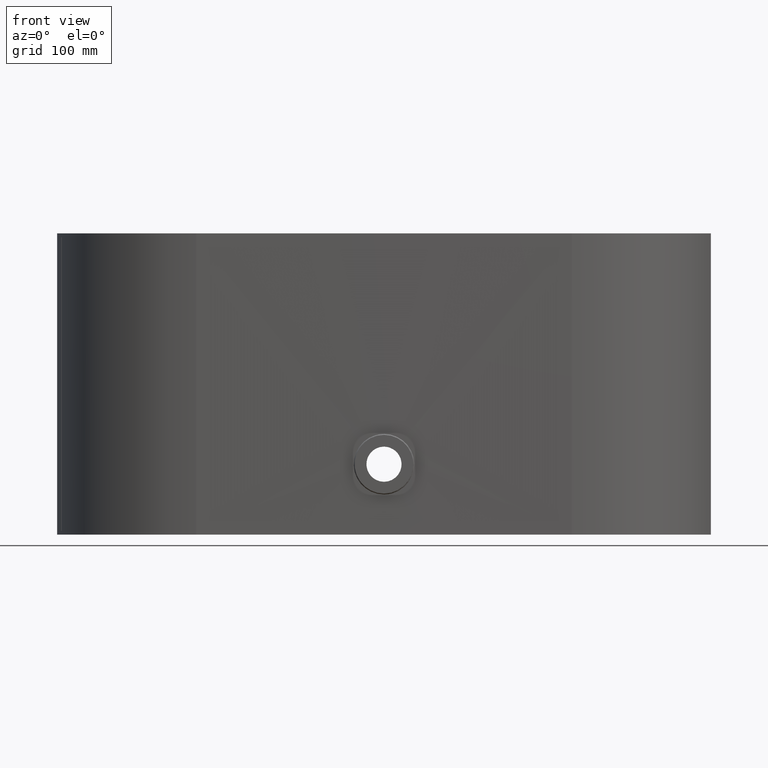
[diagram: clean part render]
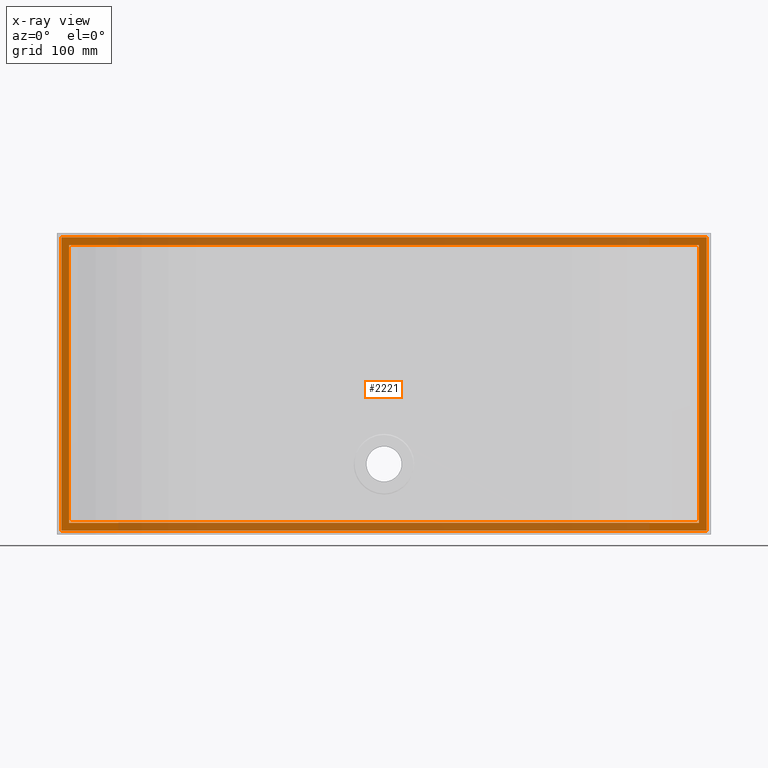
[diagram: x-ray — body ghosted, one internal face saturated and labeled with its STEP entity id]
A machine part, front view, then the same camera in x-ray: the body is ghosted and one INTERNAL B-rep face — a face not visible from any outside direction — is saturated and labeled: STEP entity #2221.
In plain terms, the highlighted planar face has unit normal (-0, 1, 0).
Its self-contained STEP definition (entity closure, byte-faithful):
#73 = VECTOR ( 'NONE', #1418, 1000.000000000000000 ) ;
#92 = CARTESIAN_POINT ( 'NONE',  ( 402.5000000000000000, -19.99999999999995000, -75.00000000000000000 ) ) ;
#106 = ORIENTED_EDGE ( 'NONE', *, *, #1814, .T. ) ;
#124 = ORIENTED_EDGE ( 'NONE', *, *, #777, .F. ) ;
#143 = CARTESIAN_POINT ( 'NONE',  ( 412.5000000000000600, -19.99999999999994700, -85.00000000000004300 ) ) ;
#155 = DIRECTION ( 'NONE',  ( -0.0000000000000000000, -0.0000000000000000000, -1.000000000000000000 ) ) ;
#175 = VERTEX_POINT ( 'NONE', #1956 ) ;
#262 = EDGE_LOOP ( 'NONE', ( #808, #124, #703, #962 ) ) ;
#313 = LINE ( 'NONE', #1352, #2713 ) ;
#338 = VECTOR ( 'NONE', #155, 1000.000000000000000 ) ;
#351 = FACE_OUTER_BOUND ( 'NONE', #262, .T. ) ;
#352 = VERTEX_POINT ( 'NONE', #2541 ) ;
#398 = CARTESIAN_POINT ( 'NONE',  ( 412.5000000000000600, -19.99999999999994700, -85.00000000000004300 ) ) ;
#401 = VERTEX_POINT ( 'NONE', #3015 ) ;
#414 = EDGE_CURVE ( 'NONE', #401, #1162, #1088, .T. ) ;
#480 = LINE ( 'NONE', #928, #3125 ) ;
#481 = AXIS2_PLACEMENT_3D ( 'NONE', #1959, #1948, #1945 ) ;
#511 = DIRECTION ( 'NONE',  ( -1.000000000000000000, -1.224646799147353200E-016, 0.0000000000000000000 ) ) ;
#542 = EDGE_CURVE ( 'NONE', #952, #814, #480, .T. ) ;
#700 = VERTEX_POINT ( 'NONE', #3092 ) ;
#703 = ORIENTED_EDGE ( 'NONE', *, *, #2772, .F. ) ;
#710 = DIRECTION ( 'NONE',  ( -1.000000000000000000, -1.224646799147353500E-016, 6.728624391667615600E-017 ) ) ;
#733 = CARTESIAN_POINT ( 'NONE',  ( -412.5000000000000600, -20.00000000000005300, -84.99999999999998600 ) ) ;
#777 = EDGE_CURVE ( 'NONE', #700, #952, #2369, .T. ) ;
#804 = LINE ( 'NONE', #3060, #2684 ) ;
#808 = ORIENTED_EDGE ( 'NONE', *, *, #542, .F. ) ;
#813 = VERTEX_POINT ( 'NONE', #3212 ) ;
#814 = VERTEX_POINT ( 'NONE', #990 ) ;
#928 = CARTESIAN_POINT ( 'NONE',  ( 412.5000000000000600, -19.99999999999994700, -85.00000000000004300 ) ) ;
#952 = VERTEX_POINT ( 'NONE', #398 ) ;
#957 = DIRECTION ( 'NONE',  ( 0.0000000000000000000, 0.0000000000000000000, 1.000000000000000000 ) ) ;
#960 = ORIENTED_EDGE ( 'NONE', *, *, #1086, .T. ) ;
#962 = ORIENTED_EDGE ( 'NONE', *, *, #1725, .F. ) ;
#990 = CARTESIAN_POINT ( 'NONE',  ( -412.5000000000000600, -20.00000000000005300, -84.99999999999998600 ) ) ;
#1086 = EDGE_CURVE ( 'NONE', #352, #401, #1480, .T. ) ;
#1088 = LINE ( 'NONE', #2751, #73 ) ;
#1162 = VERTEX_POINT ( 'NONE', #92 ) ;
#1332 = DIRECTION ( 'NONE',  ( 1.000000000000000000, 1.224646799147353500E-016, -0.0000000000000000000 ) ) ;
#1336 = CARTESIAN_POINT ( 'NONE',  ( 412.5000000000000600, -19.99999999999994700, 290.0000000000000600 ) ) ;
#1352 = CARTESIAN_POINT ( 'NONE',  ( -402.5000000000000000, -20.00000000000005000, -75.00000000000000000 ) ) ;
#1355 = DIRECTION ( 'NONE',  ( 0.0000000000000000000, 0.0000000000000000000, 1.000000000000000000 ) ) ;
#1418 = DIRECTION ( 'NONE',  ( -0.0000000000000000000, -0.0000000000000000000, -1.000000000000000000 ) ) ;
#1480 = LINE ( 'NONE', #1546, #2302 ) ;
#1546 = CARTESIAN_POINT ( 'NONE',  ( 402.5000000000000000, -19.99999999999995000, 280.0000000000000000 ) ) ;
#1572 = ORIENTED_EDGE ( 'NONE', *, *, #414, .T. ) ;
#1725 = EDGE_CURVE ( 'NONE', #814, #175, #2945, .T. ) ;
#1767 = EDGE_LOOP ( 'NONE', ( #1572, #106, #2501, #960 ) ) ;
#1787 = FACE_BOUND ( 'NONE', #1767, .T. ) ;
#1814 = EDGE_CURVE ( 'NONE', #1162, #813, #804, .T. ) ;
#1945 = DIRECTION ( 'NONE',  ( -1.000000000000000000, -1.224646799147353500E-016, 0.0000000000000000000 ) ) ;
#1948 = DIRECTION ( 'NONE',  ( -1.224646799147353500E-016, 1.000000000000000000, 0.0000000000000000000 ) ) ;
#1956 = CARTESIAN_POINT ( 'NONE',  ( -412.5000000000000600, -20.00000000000005300, 290.0000000000000600 ) ) ;
#1959 = CARTESIAN_POINT ( 'NONE',  ( 2.449293598294706500E-015, -20.00000000000000000, 0.0000000000000000000 ) ) ;
#1964 = PLANE ( 'NONE',  #481 ) ;
#2221 = ADVANCED_FACE ( 'NONE', ( #1787, #351 ), #1964, .F. ) ;
#2281 = VECTOR ( 'NONE', #1332, 1000.000000000000000 ) ;
#2302 = VECTOR ( 'NONE', #3143, 1000.000000000000000 ) ;
#2369 = LINE ( 'NONE', #143, #338 ) ;
#2501 = ORIENTED_EDGE ( 'NONE', *, *, #2607, .T. ) ;
#2541 = CARTESIAN_POINT ( 'NONE',  ( -402.5000000000000000, -20.00000000000005000, 280.0000000000000000 ) ) ;
#2607 = EDGE_CURVE ( 'NONE', #813, #352, #313, .T. ) ;
#2684 = VECTOR ( 'NONE', #511, 1000.000000000000000 ) ;
#2713 = VECTOR ( 'NONE', #1355, 1000.000000000000000 ) ;
#2751 = CARTESIAN_POINT ( 'NONE',  ( 402.5000000000000000, -19.99999999999995000, -75.00000000000000000 ) ) ;
#2772 = EDGE_CURVE ( 'NONE', #175, #700, #3194, .T. ) ;
#2822 = VECTOR ( 'NONE', #957, 1000.000000000000000 ) ;
#2945 = LINE ( 'NONE', #733, #2822 ) ;
#3015 = CARTESIAN_POINT ( 'NONE',  ( 402.5000000000000000, -19.99999999999995000, 280.0000000000000000 ) ) ;
#3060 = CARTESIAN_POINT ( 'NONE',  ( 402.5000000000000000, -19.99999999999995000, -75.00000000000000000 ) ) ;
#3092 = CARTESIAN_POINT ( 'NONE',  ( 412.5000000000000600, -19.99999999999994700, 290.0000000000000600 ) ) ;
#3125 = VECTOR ( 'NONE', #710, 1000.000000000000000 ) ;
#3143 = DIRECTION ( 'NONE',  ( 1.000000000000000000, 1.224646799147353200E-016, -0.0000000000000000000 ) ) ;
#3194 = LINE ( 'NONE', #1336, #2281 ) ;
#3212 = CARTESIAN_POINT ( 'NONE',  ( -402.5000000000000000, -20.00000000000005000, -75.00000000000000000 ) ) ;